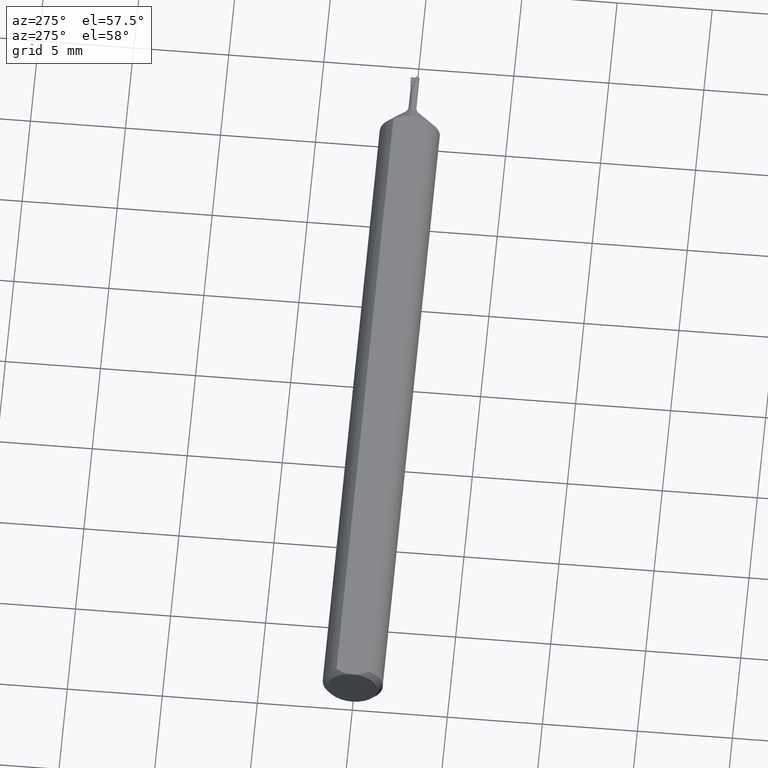
[diagram: clean part render]
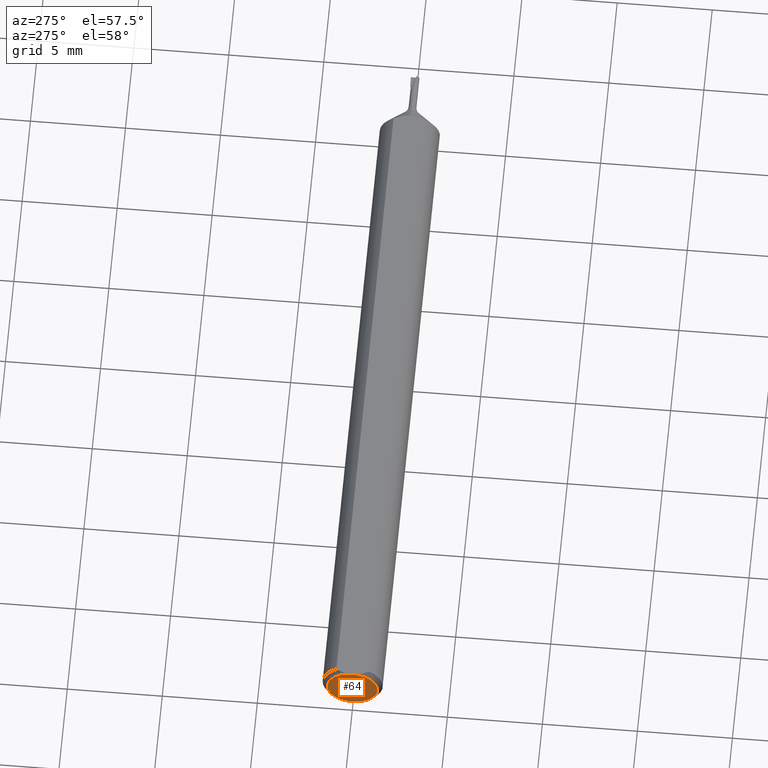
[diagram: same view with one face highlighted and labeled with its STEP entity id]
A machine part, auxiliary view. The second image highlights one B-rep face of the part: STEP entity #64.
In plain terms, the highlighted planar face has unit normal (1, 0, 0).
Its self-contained STEP definition (entity closure, byte-faithful):
#23 = ORIENTED_EDGE ( 'NONE', *, *, #421, .T. ) ;
#45 = CIRCLE ( 'NONE', #79, 0.05235000000000005621 ) ;
#64 = ADVANCED_FACE ( 'NONE', ( #488 ), #214, .F. ) ;
#68 = CARTESIAN_POINT ( 'NONE',  ( 0.000000000000000000, 0.000000000000000000, 0.05235000000000005621 ) ) ;
#73 = EDGE_CURVE ( 'NONE', #629, #513, #45, .T. ) ;
#79 = AXIS2_PLACEMENT_3D ( 'NONE', #327, #331, #547 ) ;
#109 = DIRECTION ( 'NONE',  ( 0.000000000000000000, 0.000000000000000000, -1.000000000000000000 ) ) ;
#208 = AXIS2_PLACEMENT_3D ( 'NONE', #603, #652, #109 ) ;
#214 = PLANE ( 'NONE',  #208 ) ;
#245 = EDGE_LOOP ( 'NONE', ( #349, #23 ) ) ;
#327 = CARTESIAN_POINT ( 'NONE',  ( 0.000000000000000000, 0.000000000000000000, 0.000000000000000000 ) ) ;
#331 = DIRECTION ( 'NONE',  ( -1.000000000000000000, -0.000000000000000000, -0.000000000000000000 ) ) ;
#349 = ORIENTED_EDGE ( 'NONE', *, *, #73, .T. ) ;
#387 = CARTESIAN_POINT ( 'NONE',  ( 0.000000000000000000, 0.000000000000000000, 0.000000000000000000 ) ) ;
#421 = EDGE_CURVE ( 'NONE', #513, #629, #570, .T. ) ;
#445 = CARTESIAN_POINT ( 'NONE',  ( 0.000000000000000000, 0.000000000000000000, -0.05235000000000005621 ) ) ;
#488 = FACE_OUTER_BOUND ( 'NONE', #245, .T. ) ;
#513 = VERTEX_POINT ( 'NONE', #445 ) ;
#534 = AXIS2_PLACEMENT_3D ( 'NONE', #387, #593, #648 ) ;
#547 = DIRECTION ( 'NONE',  ( 0.000000000000000000, 0.000000000000000000, -1.000000000000000000 ) ) ;
#570 = CIRCLE ( 'NONE', #534, 0.05235000000000005621 ) ;
#593 = DIRECTION ( 'NONE',  ( -1.000000000000000000, -0.000000000000000000, -0.000000000000000000 ) ) ;
#603 = CARTESIAN_POINT ( 'NONE',  ( 0.000000000000000000, 0.000000000000000000, 0.000000000000000000 ) ) ;
#629 = VERTEX_POINT ( 'NONE', #68 ) ;
#648 = DIRECTION ( 'NONE',  ( 0.000000000000000000, 0.000000000000000000, -1.000000000000000000 ) ) ;
#652 = DIRECTION ( 'NONE',  ( 1.000000000000000000, 0.000000000000000000, 0.000000000000000000 ) ) ;